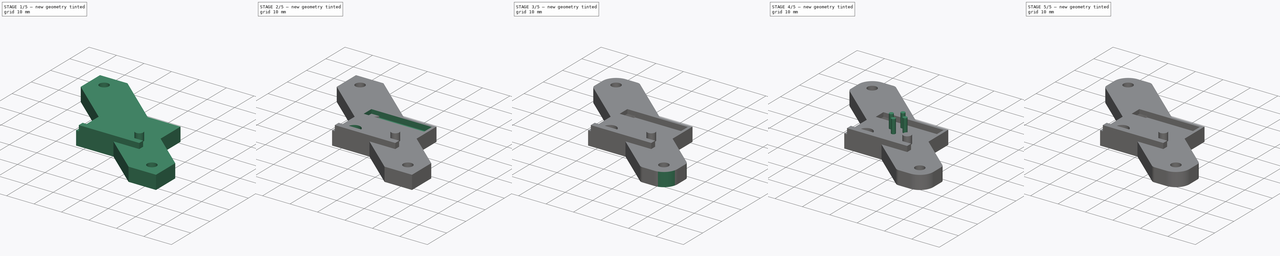
[diagram: build sequence overview — one tinted view per stage of 5, left to right]
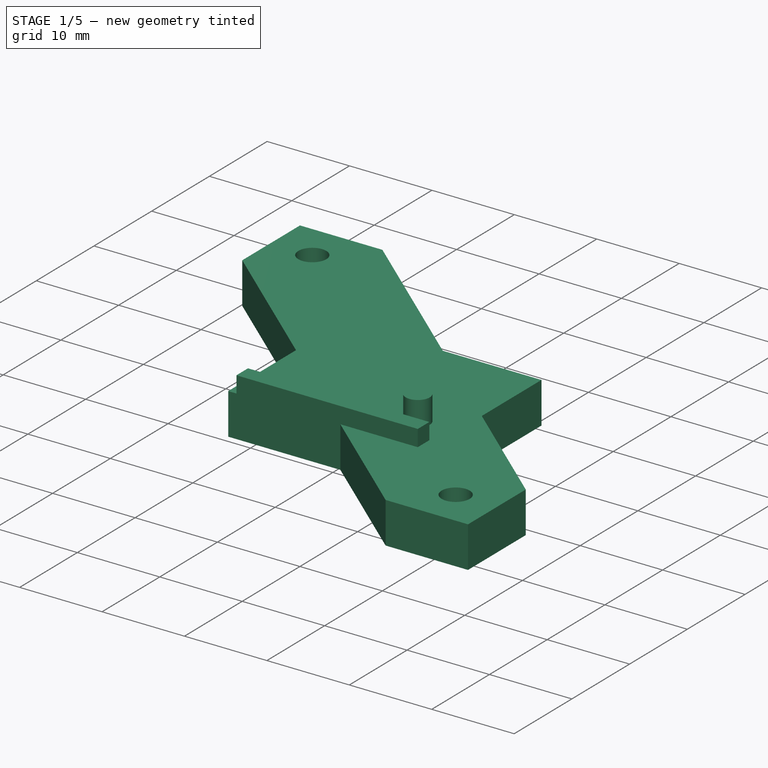
[diagram: stage 1 of 5 — iso view after this stage's code; geometry added in this stage tinted green]
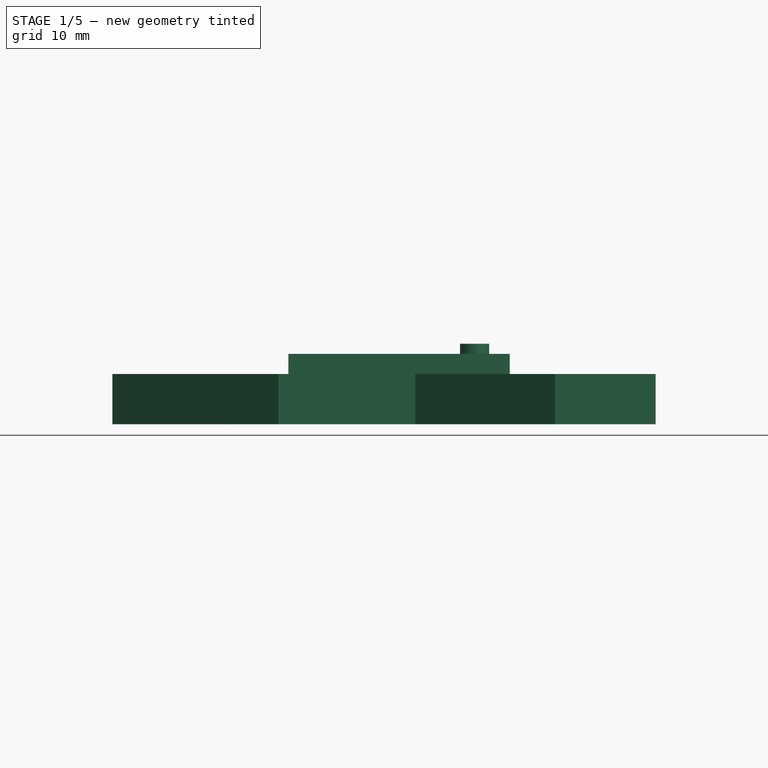
[diagram: stage 1 of 5 — front view after this stage's code; geometry added in this stage tinted green]
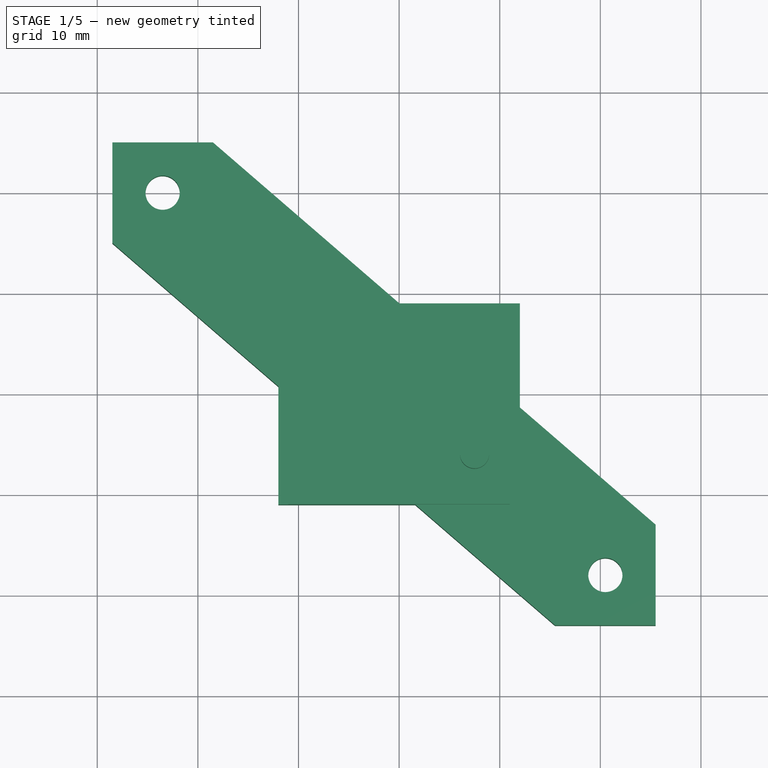
[diagram: stage 1 of 5 — top view after this stage's code; geometry added in this stage tinted green]
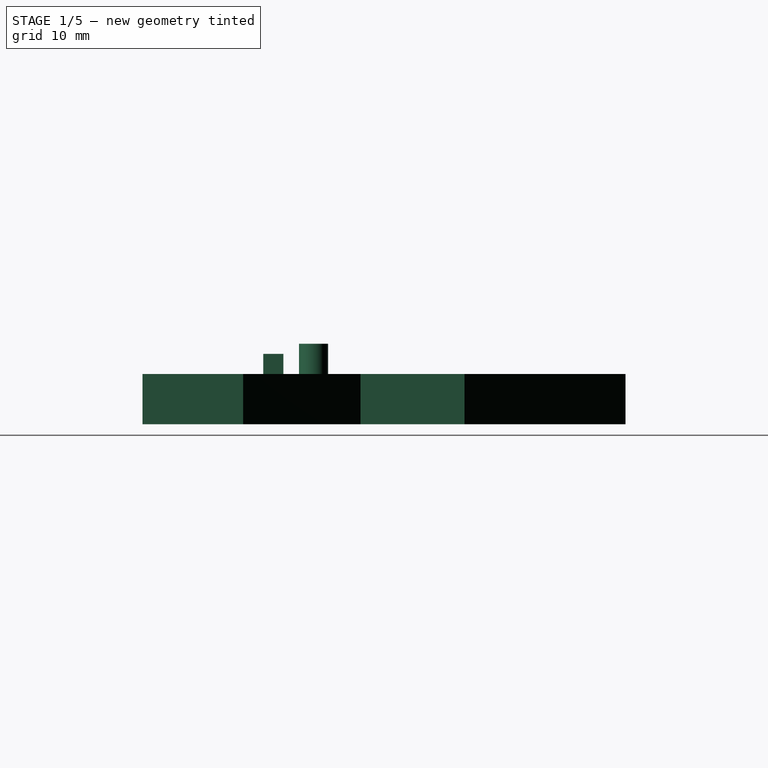
[diagram: stage 1 of 5 — right view after this stage's code; geometry added in this stage tinted green]
FCSTD DOCUMENT  (FreeCAD 0.19R24366 (Git))
Label: adxl345-mounter
License: All rights reserved
LicenseURL: http://en.wikipedia.org/wiki/All_rights_reserved
objects: Part::Cylinder×8, Part::Feature×5, Part::MultiFuse×5, Part::Fillet×3, Part::Box×2, Part::Cut×2, Sketcher::SketchObject×1, PartDesign::Pad×1, PartDesign::Body×1, Part::MultiCommon×1, Part::Chamfer×1
note: 31 computed .brp shape members not serialized (recipe doc carries the construction recipe); baked Part::Feature solids carry a one-line shape summary decoded from their .brp

FEATURE [Sketcher::SketchObject] Sketch
  FullyConstrained = true
  MapMode = 5
  Support = -> [XY_Plane]
  sketch-geometry (14):
    g0: Circle CenterX=-23.5 CenterY=20 CenterZ=0 NormalX=0 NormalY=0 NormalZ=1 AngleXU=0 Radius=1.7
    g1: Circle CenterX=20.5 CenterY=-18 CenterZ=0 NormalX=0 NormalY=0 NormalZ=1 AngleXU=0 Radius=1.7
    g2: LineSegment StartX=0.0263158 StartY=9 StartZ=0 EndX=12 EndY=9 EndZ=0
    g3: LineSegment StartX=12 StartY=9 StartZ=0 EndX=12 EndY=-1.34091 EndZ=0
    g4: LineSegment StartX=1.60526 StartY=-11 StartZ=0 EndX=-12 EndY=-11 EndZ=0
    g5: LineSegment StartX=-12 StartY=-11 StartZ=0 EndX=-12 EndY=0.75 EndZ=0
    g6: LineSegment StartX=-28.5 StartY=15 StartZ=0 EndX=-28.5 EndY=25 EndZ=0
    g7: LineSegment StartX=-28.5 StartY=25 StartZ=0 EndX=-18.5 EndY=25 EndZ=0
    g8: LineSegment StartX=15.5 StartY=-23 StartZ=0 EndX=25.5 EndY=-23 EndZ=0
    g9: LineSegment StartX=25.5 StartY=-23 StartZ=0 EndX=25.5 EndY=-13 EndZ=0
    g10: LineSegment StartX=-28.5 StartY=15 StartZ=0 EndX=-12 EndY=0.75 EndZ=0
    g11: LineSegment StartX=-18.5 StartY=25 StartZ=0 EndX=0.0263158 EndY=9 EndZ=0
    g12: LineSegment StartX=12 StartY=-1.34091 StartZ=0 EndX=25.5 EndY=-13 EndZ=0
    g13: LineSegment StartX=1.60526 StartY=-11 StartZ=0 EndX=15.5 EndY=-23 EndZ=0
  constraints (40):
    c: DistanceY(g-1,g0) = 20
    c: DistanceX(g0,g-1) = 23.5
    c: DistanceX(g-1,g1) = 20.5
    c: DistanceY(g1,g-1) = 18
    c: Equal(g0,g1)
    c: Radius(g0) = 1.7
    c: Coincident(g2,g3)
    c: Coincident(g4,g5)
    c: Horizontal(g2)
    c: Horizontal(g4)
    c: Vertical(g3)
    c: Vertical(g5)
    c: DistanceX(g-1,g2) = 12
    c: DistanceY(g4,g-1) = 11
    c: Vertical(g6)
    c: Coincident(g6,g7)
    c: Horizontal(g7)
    c: Horizontal(g8)
    c: Coincident(g8,g9)
    c: Vertical(g9)
    c: DistanceY(g6,g0) = 5
    c: DistanceY(g1,g9) = 5
    c: DistanceY(g8,g1) = 5
    c: DistanceY(g0,g7) = 5
    c: DistanceX(g0,g7) = 5
    c: DistanceX(g6,g0) = 5
    c: DistanceX(g8,g1) = 5
    c: DistanceX(g1,g9) = 5
    c: Coincident(g10,g6)
    c: Coincident(g13,g8)
    c: Coincident(g11,g7)
    c: Coincident(g12,g9)
    c: Coincident(g11,g2)
    c: Tangent(g11,g12)
    c: Coincident(g10,g5)
    c: Tangent(g10,g13)
    c: Coincident(g4,g13)
    c: Coincident(g3,g12)
    c: DistanceY(g-1,g2) = 9
    c: DistanceX(g4,g-1) = 12
FEATURE [Part::Feature] Chamfer002001  label="sensor-r002"
  Placement = pos=(0,-9,5) rot=(0,0,1;0rad)
  shape: bbox 22 x 28 x 6 mm, 47 faces (baked)
FEATURE [PartDesign::Pad] Pad
  Direction = (1,1,1)
  Length = 5
  Length2 = 100
  Profile = -> Sketch
  Type = 0
FEATURE [Part::Cylinder] Cylinder001
  Angle = 360
  AttacherType = Attacher::AttachEngine3D
  Height = 8
  Placement = pos=(7.5,-6,0) rot=(0,0,1;0rad)
  Radius = 1.45
FEATURE [Part::Box] Box001  label="Cube001"
  AttacherType = Attacher::AttachEngine3D
  Height = 4
  Length = 22
  Placement = pos=(-11,-11,3) rot=(0,0,1;0rad)
  Width = 2
FEATURE [Part::Feature] Common001
  Placement = pos=(15,-13,0) rot=(0,0,1;0rad)
  shape: bbox 6.5 x 6.5 x 10.92 mm, 18 faces (baked)
FEATURE [Part::Feature] Common002
  Placement = pos=(-18,15,0) rot=(0,0,1;0rad)
  shape: bbox 6.5 x 6.5 x 10.92 mm, 18 faces (baked)
FEATURE [Part::Feature] Common003
  Placement = pos=(-11,9,0) rot=(0,0,1;0rad)
  shape: bbox 6.5 x 6.5 x 10.92 mm, 18 faces (baked)
FEATURE [Part::Feature] Common004
  Placement = pos=(8,-7,0) rot=(0,0,1;0rad)
  shape: bbox 6.5 x 6.5 x 10.92 mm, 18 faces (baked)
FEATURE [Part::MultiFuse] Fusion004
  Shapes = -> [Common004,Common001,Common002,Common003]
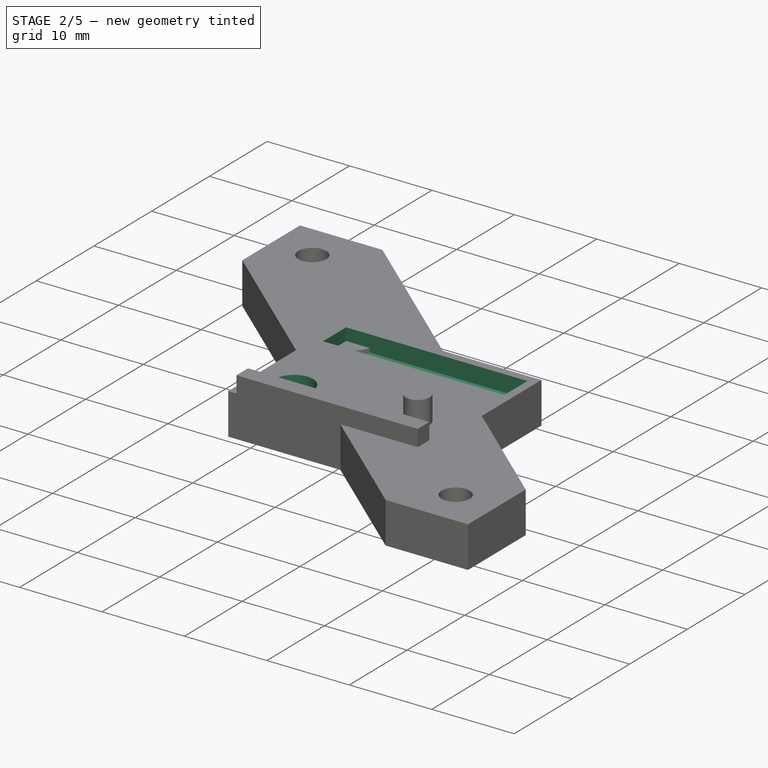
[diagram: stage 2 of 5 — iso view after this stage's code; geometry added in this stage tinted green]
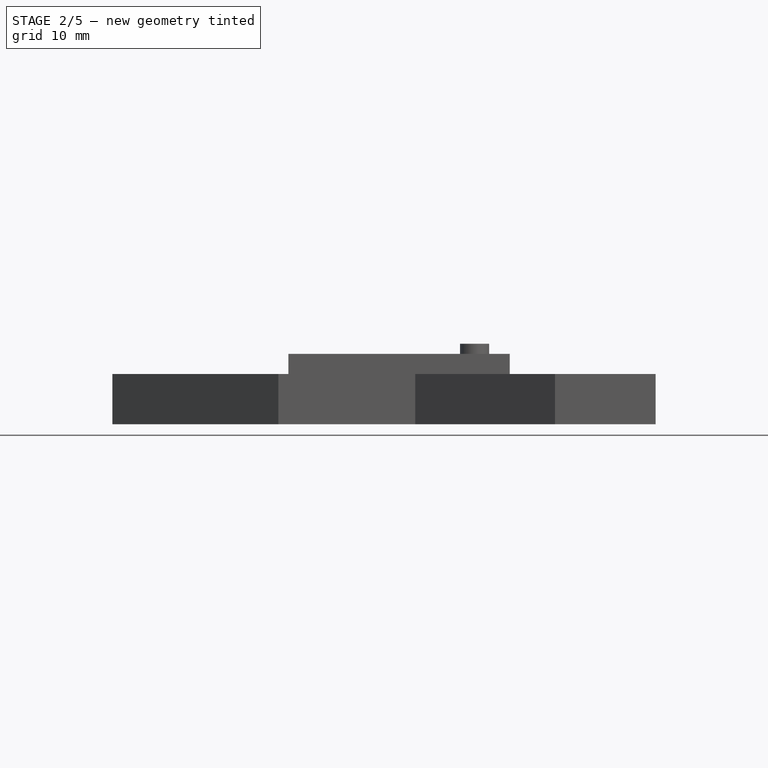
[diagram: stage 2 of 5 — front view after this stage's code; geometry added in this stage tinted green]
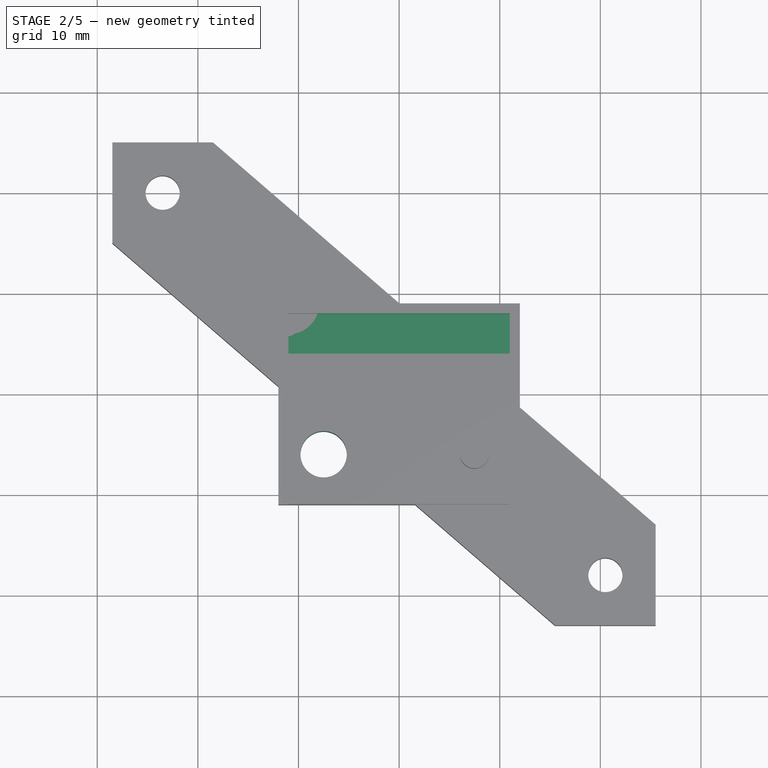
[diagram: stage 2 of 5 — top view after this stage's code; geometry added in this stage tinted green]
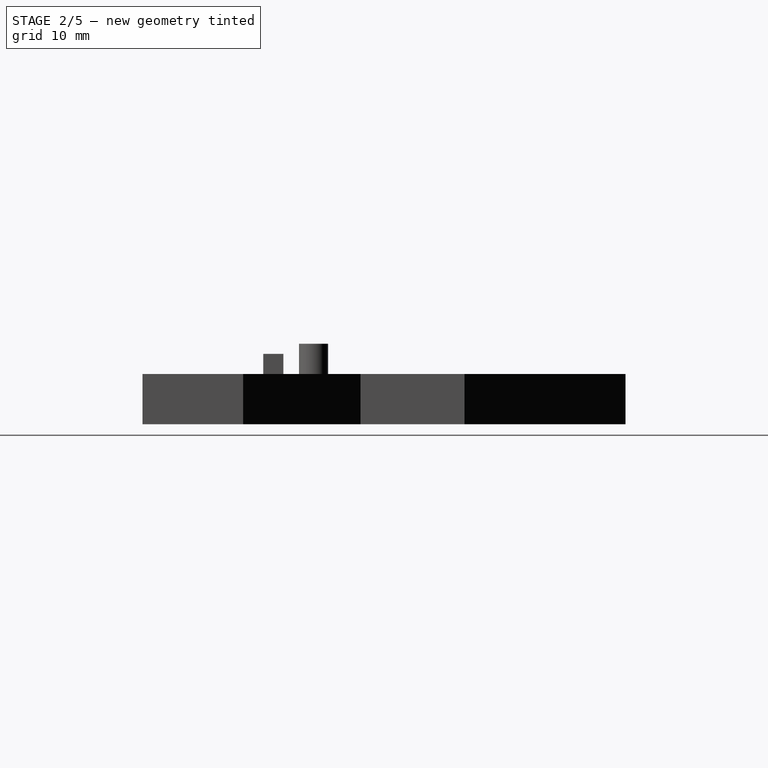
[diagram: stage 2 of 5 — right view after this stage's code; geometry added in this stage tinted green]
FEATURE [PartDesign::Body] Body
  Group = -> [Sketch,Pad]
  Origin = -> Origin
  Tip = -> Pad
FEATURE [Part::Box] Box  label="Cube"
  AttacherType = Attacher::AttachEngine3D
  Height = 10
  Length = 22
  Placement = pos=(-11,4,3) rot=(0,0,1;0rad)
  Width = 4
FEATURE [Part::Cylinder] Cylinder
  Angle = 360
  AttacherType = Attacher::AttachEngine3D
  Height = 10
  Placement = pos=(-7.5,-6,0) rot=(0,0,1;0rad)
  Radius = 2.3
FEATURE [Part::MultiFuse] Fusion
  Shapes = -> [Cylinder,Box]
FEATURE [Part::MultiFuse] Fusion001
  Shapes = -> [Pad,Box001,Cylinder001]
FEATURE [Part::Cut] Cut
  Base = -> Fusion001
  Refine = true
  Tool = -> Fusion
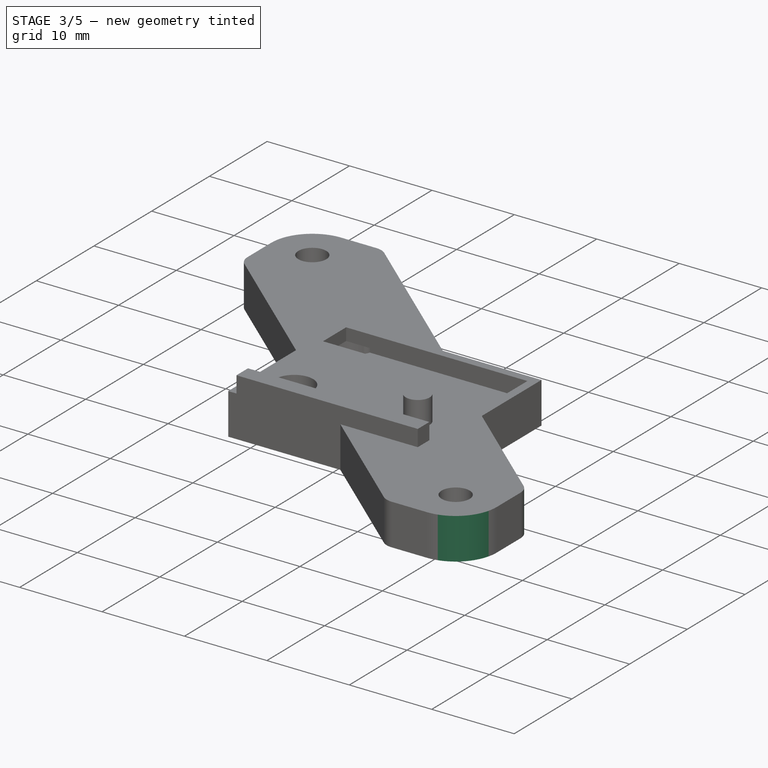
[diagram: stage 3 of 5 — iso view after this stage's code; geometry added in this stage tinted green]
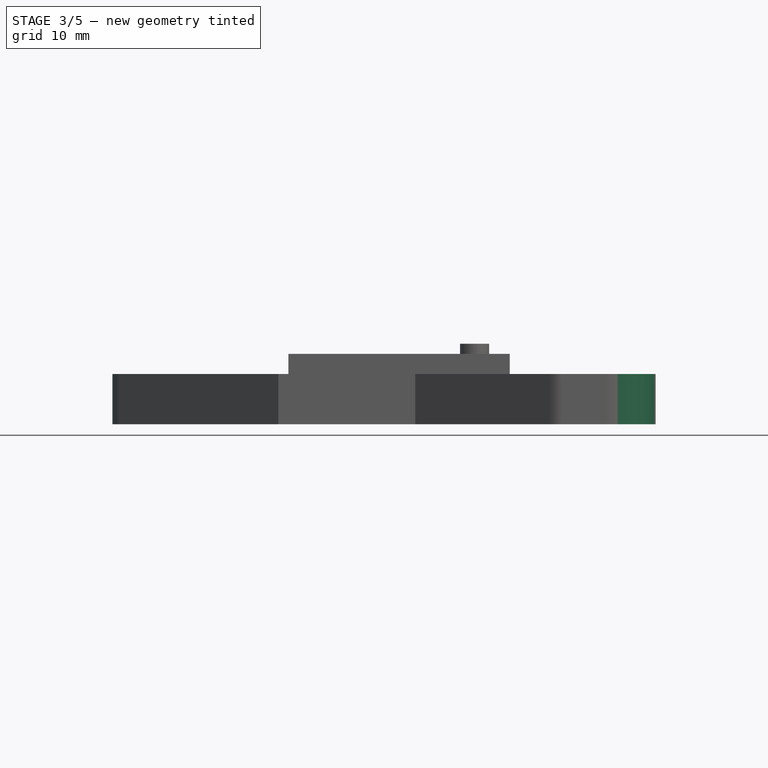
[diagram: stage 3 of 5 — front view after this stage's code; geometry added in this stage tinted green]
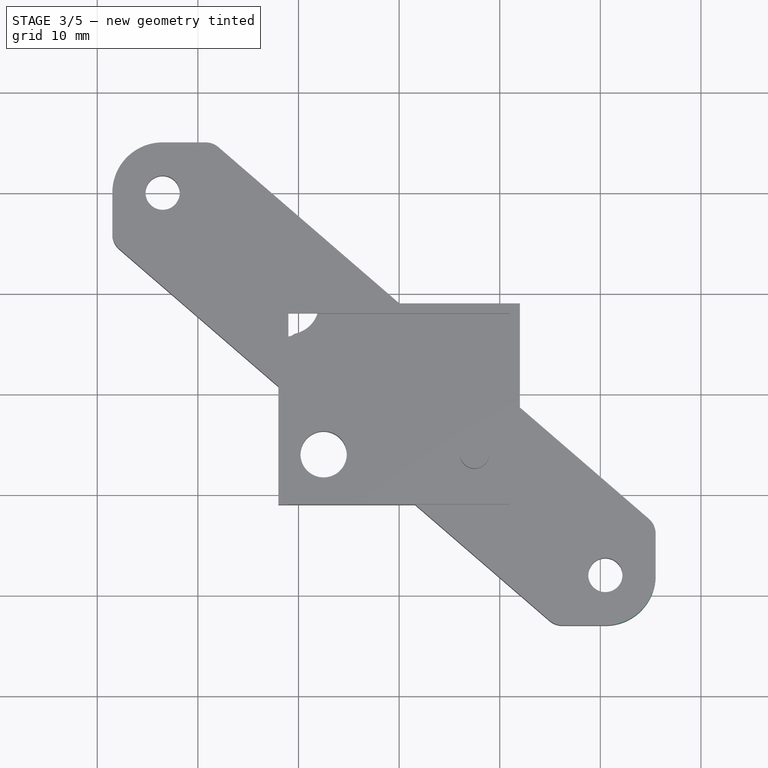
[diagram: stage 3 of 5 — top view after this stage's code; geometry added in this stage tinted green]
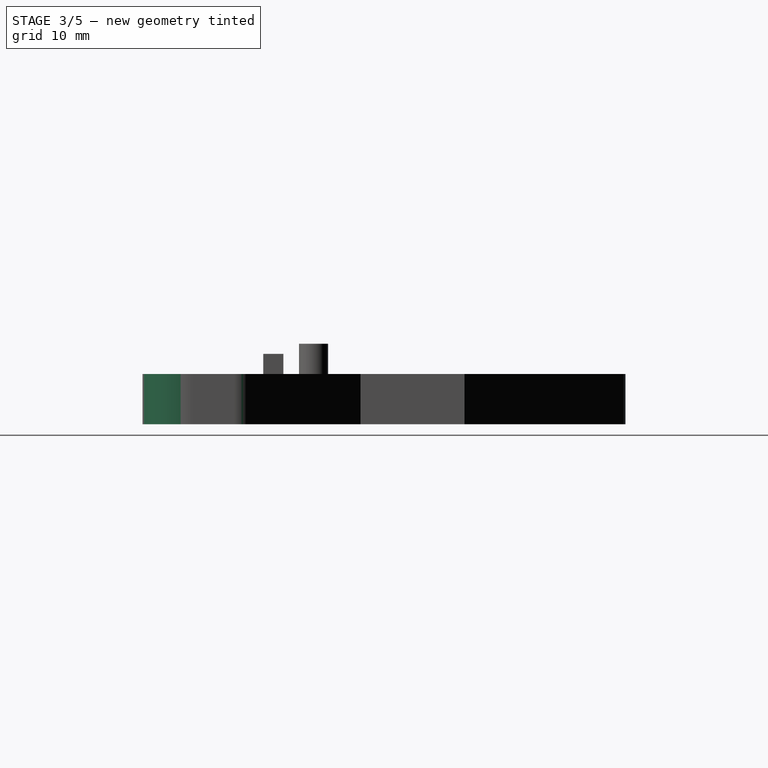
[diagram: stage 3 of 5 — right view after this stage's code; geometry added in this stage tinted green]
FEATURE [Part::Cylinder] Cylinder007
  Angle = 360
  AttacherType = Attacher::AttachEngine3D
  Height = 3.5
  Radius = 4
FEATURE [Part::Cut] Cut001
  Base = -> Cut
  Tool = -> Fusion004
FEATURE [Part::Fillet] Fillet001
  Base = -> Cut001
  Edges = 2 edges r=5: [Edge2,Edge121]
FEATURE [Part::Fillet] Fillet002
  Base = -> Fillet001
  Edges = 4 edges r=2: [Edge2,Edge116,Edge124,Edge127]
FEATURE [Part::Chamfer] Chamfer
  Base = -> Fillet002
  Edges = 89 edges r=0.4: [Edge1,Edge5,Edge6,Edge7,Edge8,Edge9,Edge10,Edge11,Edge12,Edge13,Edge14,Edge15,Edge16,Edge17,Edge18,Edge19,Edge20,Edge21,Edge22,Edge23,Edge24,Edge25,Edge26,Edge27,Edge28,Edge29,Edge30,Edge31,Edge32,Edge33,Edge34,Edge35,Edge36,Edge37,Edge38,Edge39,Edge40,Edge41,Edge42,Edge43,Edge44,Edge45,Edge46,+46 more]
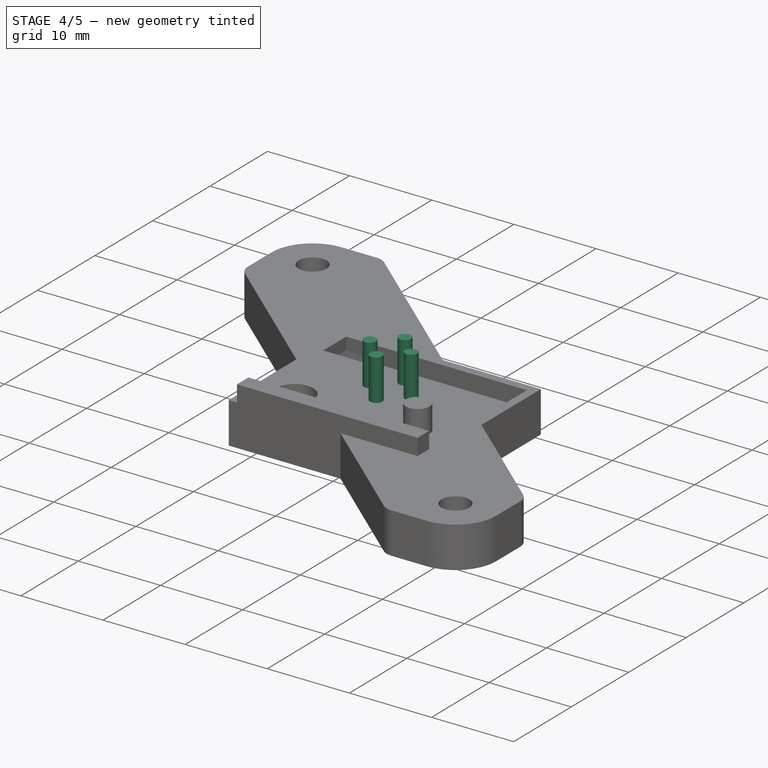
[diagram: stage 4 of 5 — iso view after this stage's code; geometry added in this stage tinted green]
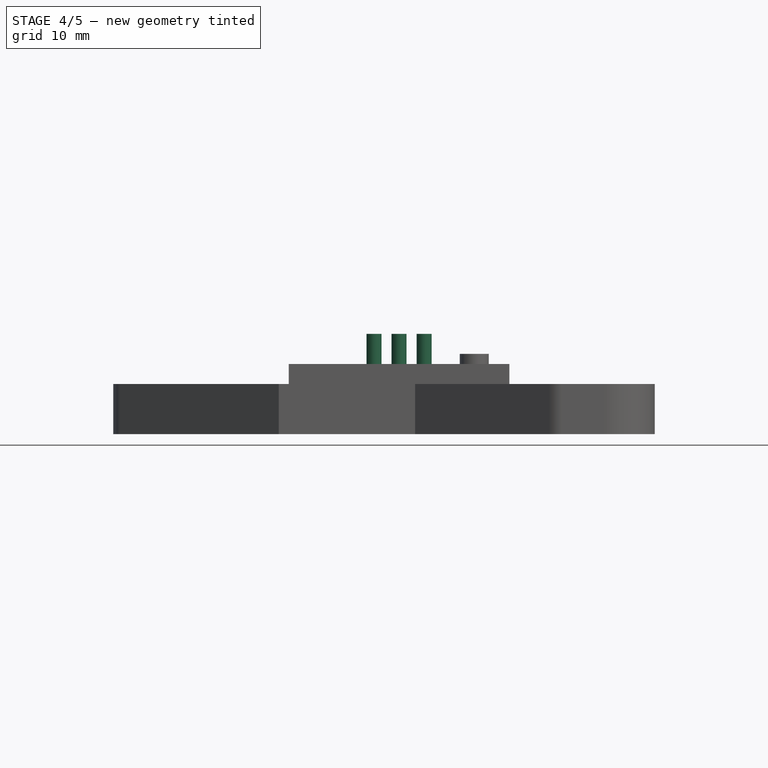
[diagram: stage 4 of 5 — front view after this stage's code; geometry added in this stage tinted green]
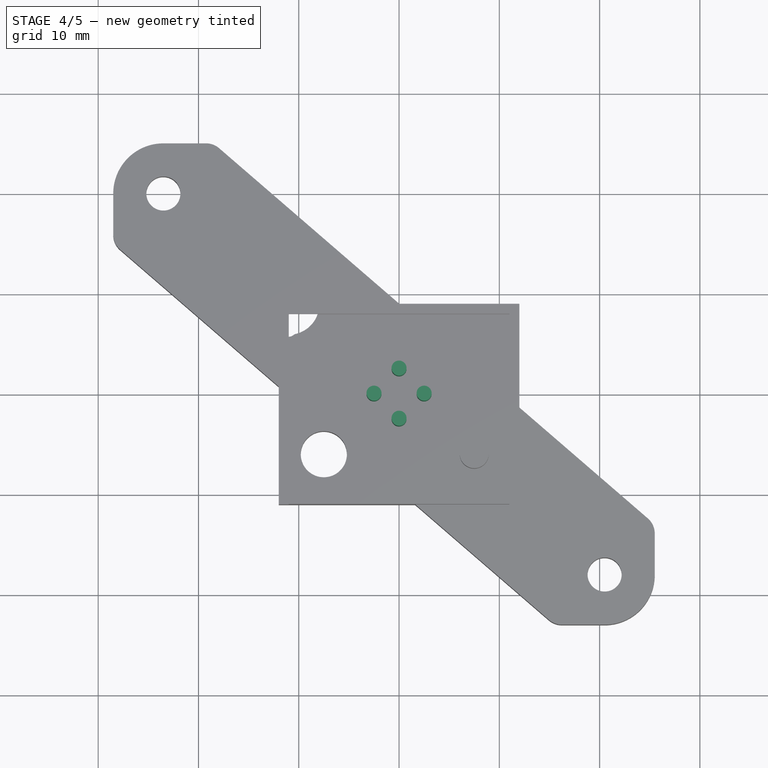
[diagram: stage 4 of 5 — top view after this stage's code; geometry added in this stage tinted green]
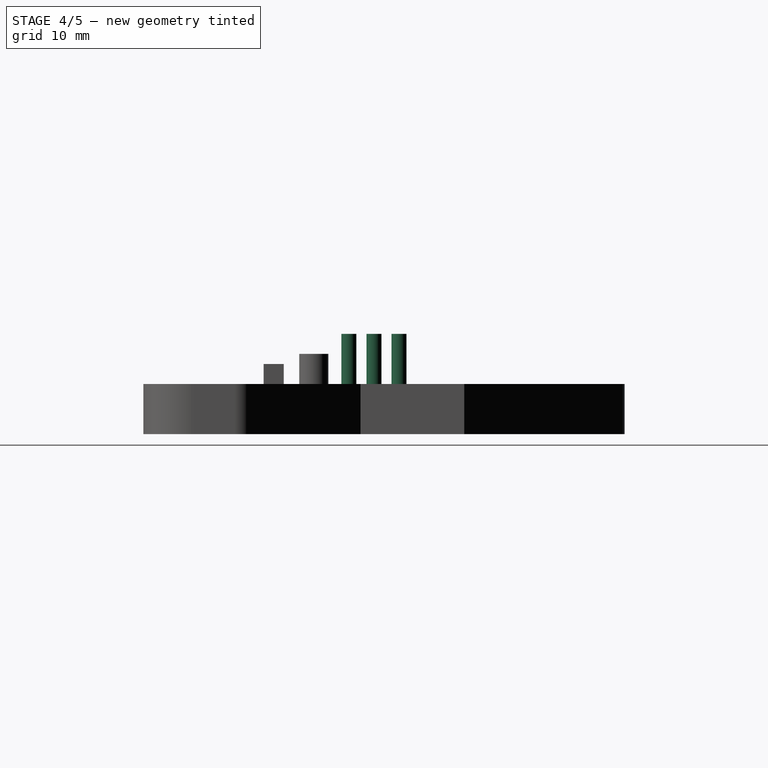
[diagram: stage 4 of 5 — right view after this stage's code; geometry added in this stage tinted green]
FEATURE [Part::Cylinder] Cylinder003
  Angle = 360
  AttacherType = Attacher::AttachEngine3D
  Height = 10
  Placement = pos=(0,2.5,0) rot=(0,0,1;0rad)
  Radius = 0.75
FEATURE [Part::Cylinder] Cylinder004
  Angle = 360
  AttacherType = Attacher::AttachEngine3D
  Height = 10
  Placement = pos=(0,-2.5,0) rot=(0,0,1;0rad)
  Radius = 0.75
FEATURE [Part::Cylinder] Cylinder005
  Angle = 360
  AttacherType = Attacher::AttachEngine3D
  Height = 10
  Placement = pos=(2.5,0,0) rot=(0,0,1;0rad)
  Radius = 0.75
FEATURE [Part::Cylinder] Cylinder006
  Angle = 360
  AttacherType = Attacher::AttachEngine3D
  Height = 10
  Placement = pos=(-2.5,0,0) rot=(0,0,1;0rad)
  Radius = 0.75
FEATURE [Part::MultiFuse] Fusion002
  Shapes = -> [Cylinder003,Cylinder004,Cylinder005,Cylinder006]
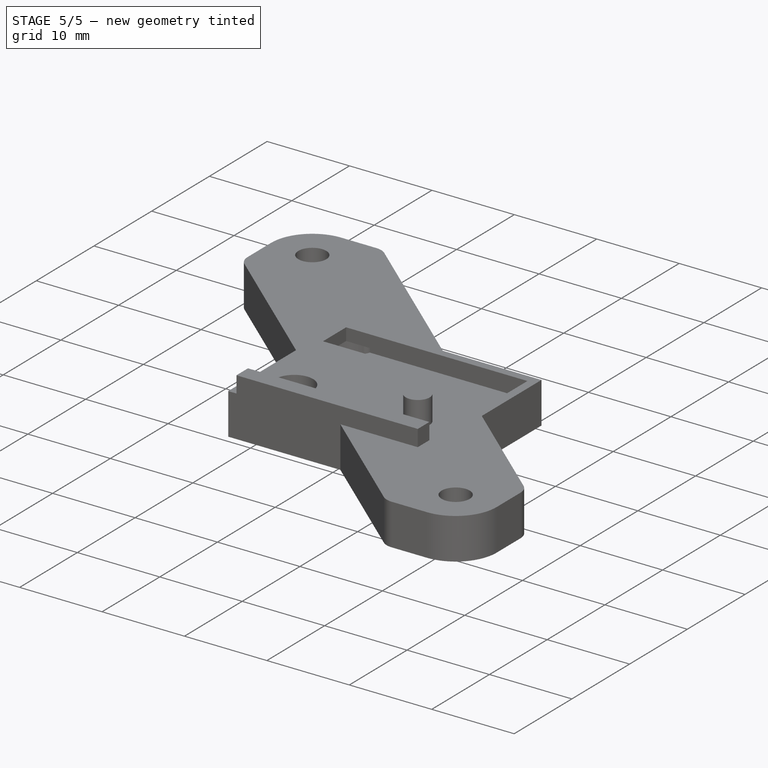
[diagram: stage 5 of 5 — iso view after this stage's code; geometry added in this stage tinted green]
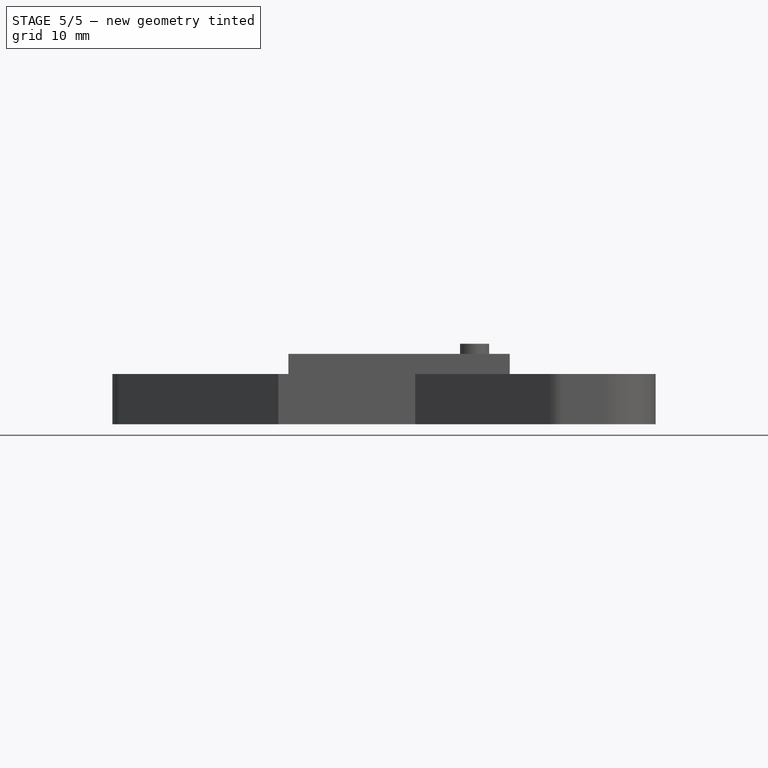
[diagram: stage 5 of 5 — front view after this stage's code; geometry added in this stage tinted green]
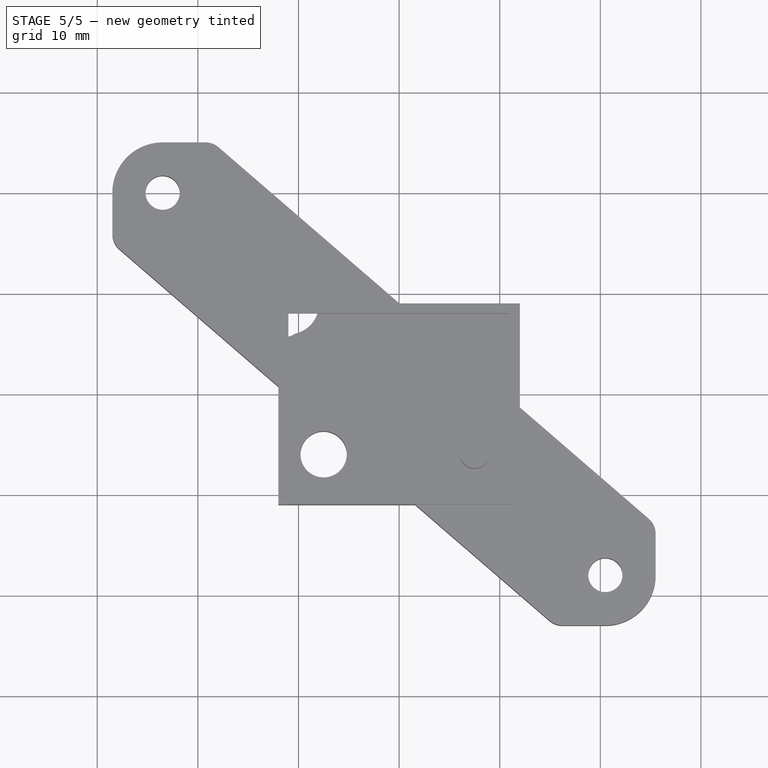
[diagram: stage 5 of 5 — top view after this stage's code; geometry added in this stage tinted green]
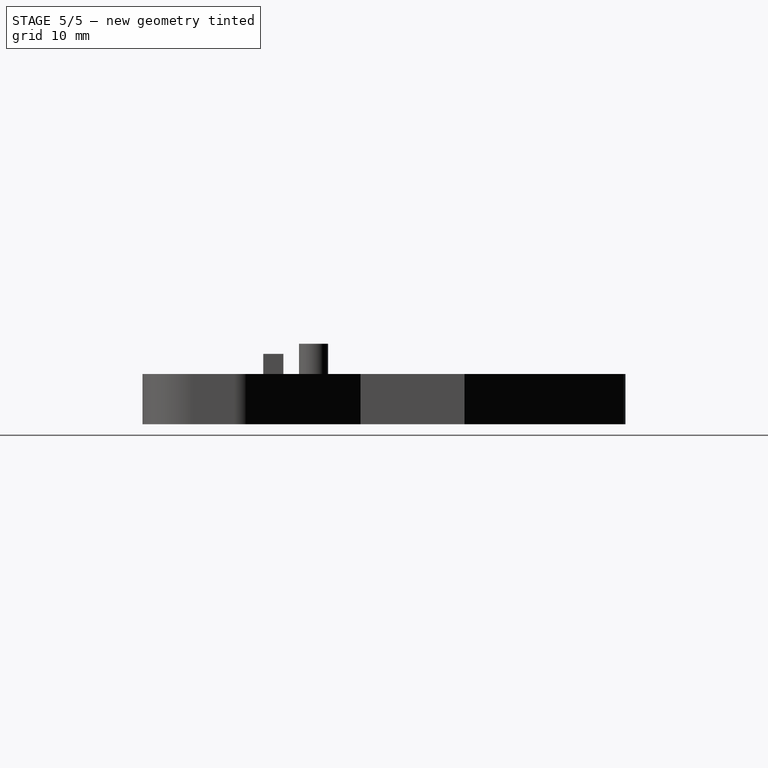
[diagram: stage 5 of 5 — right view after this stage's code; geometry added in this stage tinted green]
FEATURE [Part::Cylinder] Cylinder002
  Angle = 360
  AttacherType = Attacher::AttachEngine3D
  Height = 10
  Radius = 3.05
FEATURE [Part::MultiFuse] Fusion003
  Shapes = -> [Cylinder002,Fusion002]
FEATURE [Part::Fillet] Fillet  label="magnet-cut"
  Base = -> Fusion003
  Edges = 8 edges r=0.4: [Edge17,Edge20,Edge21,Edge24,Edge25,Edge29,Edge30,Edge33]
FEATURE [Part::MultiCommon] Common
  Refine = true
  Shapes = -> [Cylinder007,Fillet]
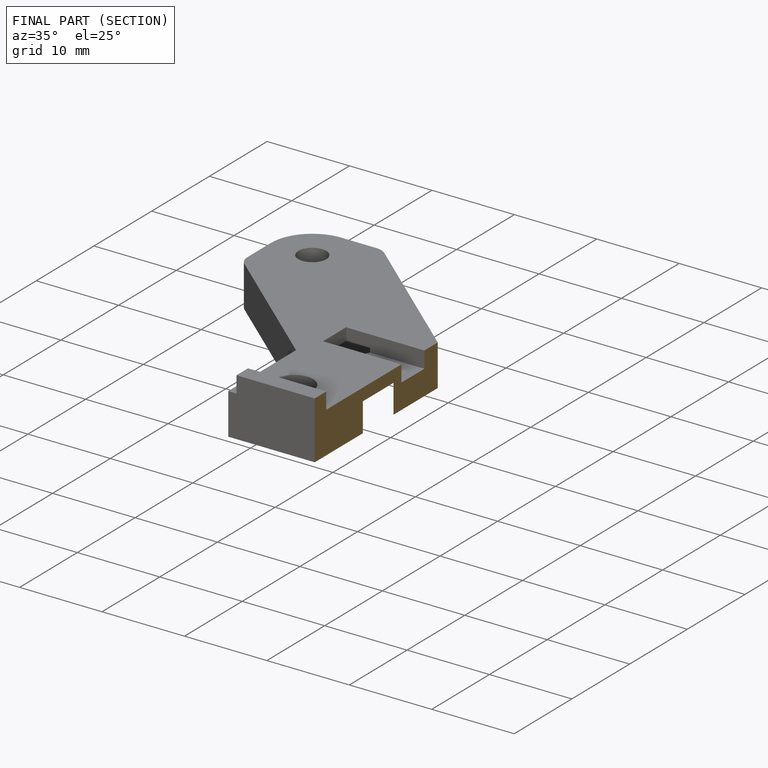
[diagram: finished part — half-section view (interior)]
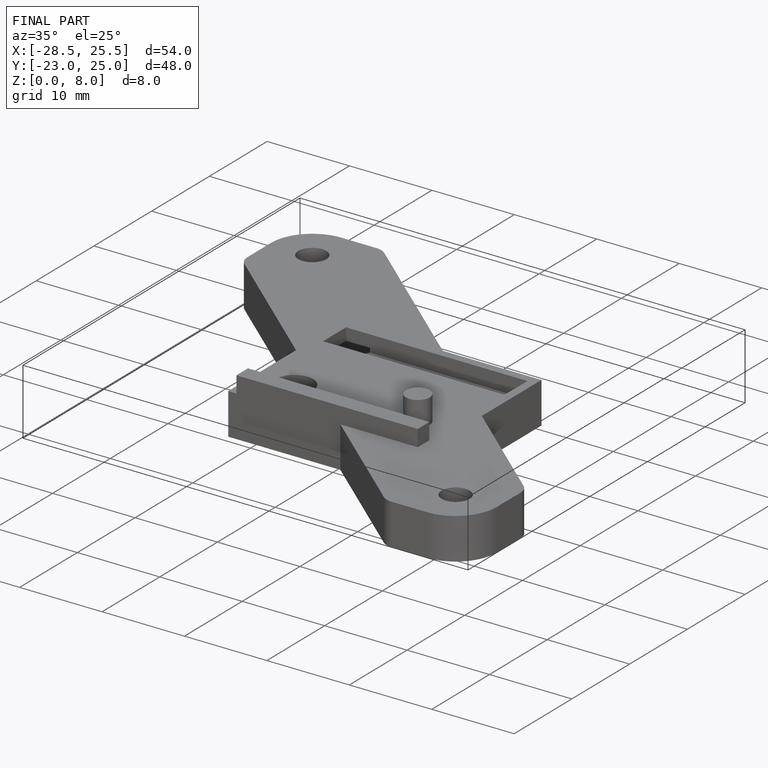
[diagram: finished part — iso view with bounding-box wireframe]
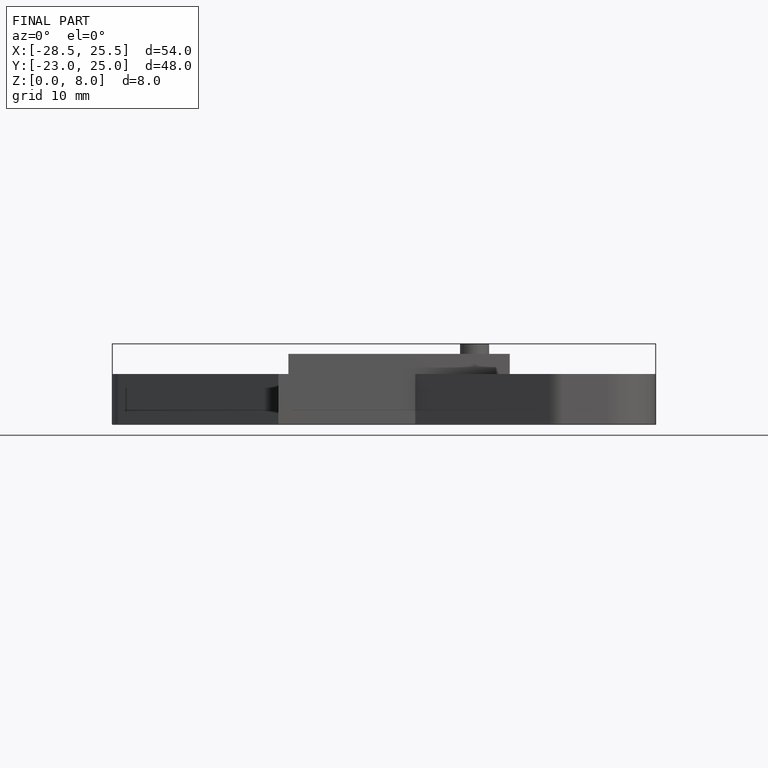
[diagram: finished part — front view with bounding-box wireframe]
